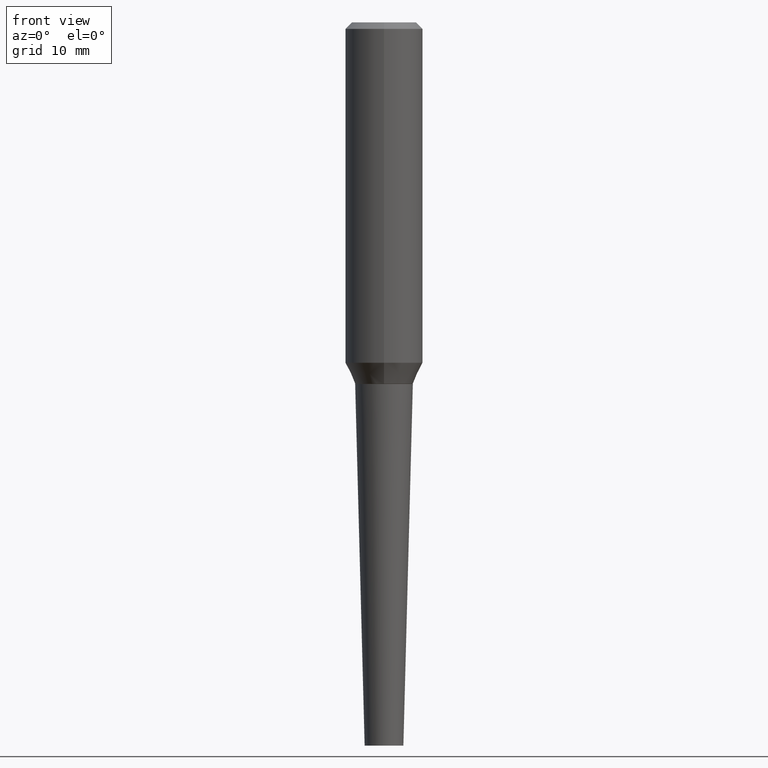
[diagram: clean part render]
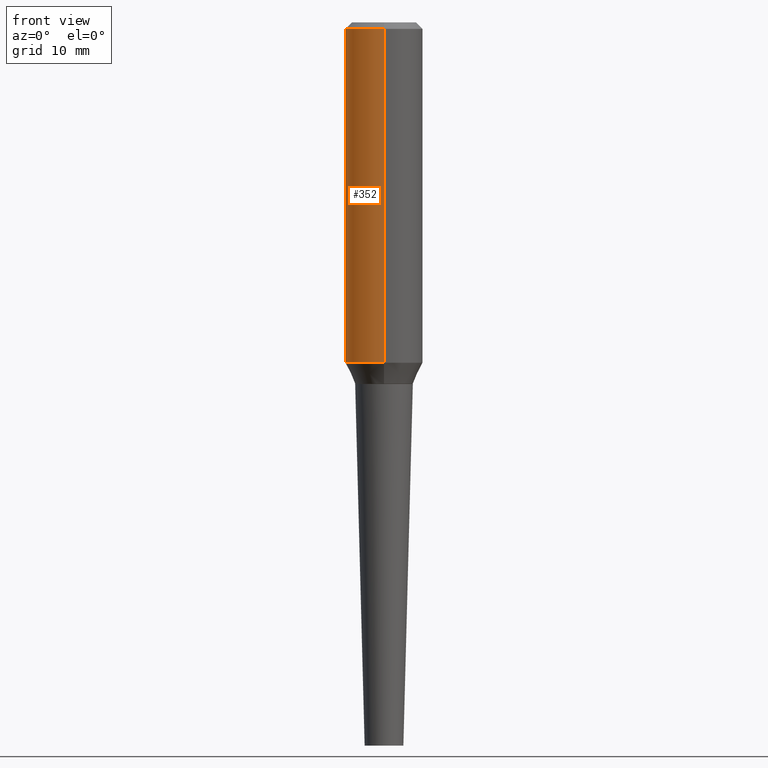
[diagram: same view with one face highlighted and labeled with its STEP entity id]
A machine part, front view. The second image highlights one B-rep face of the part: STEP entity #352.
In plain terms, the highlighted cylindrical surface (partial cylindrical patch) has radius 4.7625 mm, axis along (-0, 0, 1).
Its self-contained STEP definition (entity closure, byte-faithful):
#14 = FACE_OUTER_BOUND ( 'NONE', #57, .T. ) ;
#24 = ORIENTED_EDGE ( 'NONE', *, *, #100, .F. ) ;
#26 = ORIENTED_EDGE ( 'NONE', *, *, #143, .F. ) ;
#33 = DIRECTION ( 'NONE',  ( -6.982962677686265922E-15, -1.000000000000000000, 3.164390592661096858E-15 ) ) ;
#40 = CARTESIAN_POINT ( 'NONE',  ( 4.075929029612539620E-29, -5.682960139228246655E-15, -1.647225283746025504 ) ) ;
#50 = AXIS2_PLACEMENT_3D ( 'NONE', #388, #291, #105 ) ;
#57 = EDGE_LOOP ( 'NONE', ( #26, #367, #118, #24 ) ) ;
#59 = CARTESIAN_POINT ( 'NONE',  ( 1.309305502066175600E-15, 0.1874999999999998890, -0.03125000000000069389 ) ) ;
#79 = CARTESIAN_POINT ( 'NONE',  ( -1.309305502066133790E-15, -0.1875000000000056066, -1.647225283746024838 ) ) ;
#100 = EDGE_CURVE ( 'NONE', #398, #177, #309, .T. ) ;
#105 = DIRECTION ( 'NONE',  ( -6.982962677686265922E-15, -1.000000000000000000, 3.154607792043817320E-15 ) ) ;
#113 = DIRECTION ( 'NONE',  ( -6.982962677686266711E-15, -1.000000000000000000, 2.913971193241881555E-15 ) ) ;
#118 = ORIENTED_EDGE ( 'NONE', *, *, #396, .T. ) ;
#127 = DIRECTION ( 'NONE',  ( -2.680706346625087460E-29, 3.154607792043817320E-15, 1.000000000000000000 ) ) ;
#134 = VECTOR ( 'NONE', #240, 39.37007874015748143 ) ;
#135 = DIRECTION ( 'NONE',  ( -2.680706346625087460E-29, 3.154607792043817320E-15, 1.000000000000000000 ) ) ;
#143 = EDGE_CURVE ( 'NONE', #182, #398, #193, .T. ) ;
#165 = EDGE_CURVE ( 'NONE', #182, #206, #290, .T. ) ;
#177 = VERTEX_POINT ( 'NONE', #230 ) ;
#182 = VERTEX_POINT ( 'NONE', #326 ) ;
#193 = LINE ( 'NONE', #318, #416 ) ;
#206 = VERTEX_POINT ( 'NONE', #79 ) ;
#221 = CARTESIAN_POINT ( 'NONE',  ( -2.560261695147064885E-30, -5.851919173728164913E-16, -0.03125000000000010408 ) ) ;
#230 = CARTESIAN_POINT ( 'NONE',  ( -1.286343374582167887E-15, -0.1875000000000010270, -0.03124999999999950734 ) ) ;
#235 = LINE ( 'NONE', #272, #134 ) ;
#240 = DIRECTION ( 'NONE',  ( -2.680706346625087460E-29, 3.154607792043817320E-15, 1.000000000000000000 ) ) ;
#272 = CARTESIAN_POINT ( 'NONE',  ( -1.309305502066179544E-15, -0.1875000000000006661, 6.106128155410544140E-16 ) ) ;
#285 = DIRECTION ( 'NONE',  ( -2.680706346625087460E-29, 3.154607792043817320E-15, 1.000000000000000000 ) ) ;
#290 = CIRCLE ( 'NONE', #351, 0.1874999999999999445 ) ;
#291 = DIRECTION ( 'NONE',  ( -2.680706346625087460E-29, 3.154607792043817320E-15, 1.000000000000000000 ) ) ;
#309 = CIRCLE ( 'NONE', #393, 0.1875000000000004718 ) ;
#318 = CARTESIAN_POINT ( 'NONE',  ( 1.332267629550185482E-15, 0.1874999999999996947, -5.723651064753783135E-16 ) ) ;
#321 = CYLINDRICAL_SURFACE ( 'NONE', #50, 0.1875000000000001943 ) ;
#326 = CARTESIAN_POINT ( 'NONE',  ( 1.332267629550207373E-15, 0.1874999999999942824, -1.647225283746025948 ) ) ;
#351 = AXIS2_PLACEMENT_3D ( 'NONE', #40, #135, #113 ) ;
#352 = ADVANCED_FACE ( 'NONE', ( #14 ), #321, .T. ) ;
#367 = ORIENTED_EDGE ( 'NONE', *, *, #165, .T. ) ;
#388 = CARTESIAN_POINT ( 'NONE',  ( -3.397982428467408395E-30, -4.866104238714468673E-16, 1.912385453283800096E-17 ) ) ;
#393 = AXIS2_PLACEMENT_3D ( 'NONE', #221, #127, #33 ) ;
#396 = EDGE_CURVE ( 'NONE', #206, #177, #235, .T. ) ;
#398 = VERTEX_POINT ( 'NONE', #59 ) ;
#416 = VECTOR ( 'NONE', #285, 39.37007874015748143 ) ;